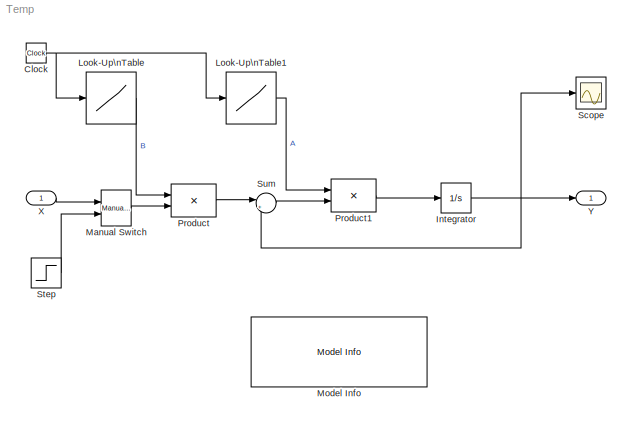
MODEL Temp
KIND model
CONFIG AbsTol = auto
CONFIG FixedStep = 1
CONFIG MaxStep = auto
CONFIG MinStep = auto
CONFIG RelTol = 1e-3
CONFIG Solver = ode4
CONFIG SolverMode = Auto
CONFIG StartTime = 0.0
CONFIG StopTime = 8
BLOCK [Clock] Clock
  Decimation = 10
BLOCK [Integrator] Integrator
  Ports = [1, 1]
BLOCK [Lookup] Look-Up\nTable
  InputValues = [1:1:5]
  OutputValues = [5 8 6 2 3]
BLOCK [Lookup] Look-Up\nTable1
  InputValues = [1:1:5]
  OutputValues = [6 5 2 4 1]
BLOCK [Reference] Manual Switch  REF=simulink/Signal\nRouting/Manual Switch
  Ports = [2, 1]
  SourceBlock = simulink/Signal\nRouting/Manual Switch
  SourceType = Manual Switch
  action = 0
  sw = 0
BLOCK [Reference] Model Info  REF=simulink/Model-Wide\nUtilities/Model Info
  BlockCM = None
  DisplayStringWithTags = ÊäÈë£ºX\n输出：Y\n参数改变根据你的需要\n按照插值方法给出。
  Frame = on
  HorizontalTextAlignment = Center
  InitialBlockCM = None
  LeftAlignmentValue = 0.5
  MaskDisplayString = ÊäÈë£ºX\\n输出：Y\\n参数改变根据你的需要\\n按照插值方法给出。
  Ports = []
  SourceBlock = simulink/Model-Wide\nUtilities/Model Info
  SourceBlockDiagram = Temp
  SourceType = CMBlock
  TagMaxNumber = 20
BLOCK [Product] Product
  InputSameDT = off
  Ports = [2, 1]
BLOCK [Product] Product1
  InputSameDT = off
  Inputs = /*
  Ports = [2, 1]
BLOCK [Scope] Scope
  DataFormat = StructureWithTime
  LimitDataPoints = off
  NumInputPorts = 1
  Ports = [1]
BLOCK [Step] Step
  SampleTime = 0
BLOCK [Sum] Sum
  IconShape = round
  InputSameDT = off
  Inputs = |+-
  OutDataTypeMode = Inherit via internal rule
  Ports = [2, 1]
BLOCK [Inport] X
BLOCK [Outport] Y
NET Clock:1 -> Look-Up\nTable1:1, Look-Up\nTable:1
NET Integrator:1 -> Scope:1, Sum:2, Y:1
LINE Look-Up\nTable1:1 -> Product1:1
LINE Look-Up\nTable:1 -> Product:1
LINE Manual Switch:1 -> Product:2
LINE Product1:1 -> Integrator:1
LINE Product:1 -> Sum:1
LINE Step:1 -> Manual Switch:2
LINE Sum:1 -> Product1:2
LINE X:1 -> Manual Switch:1
note: NET lines group one-source signal fan-out (src -> all destinations, sorted); 1:1 wires keep LINE
